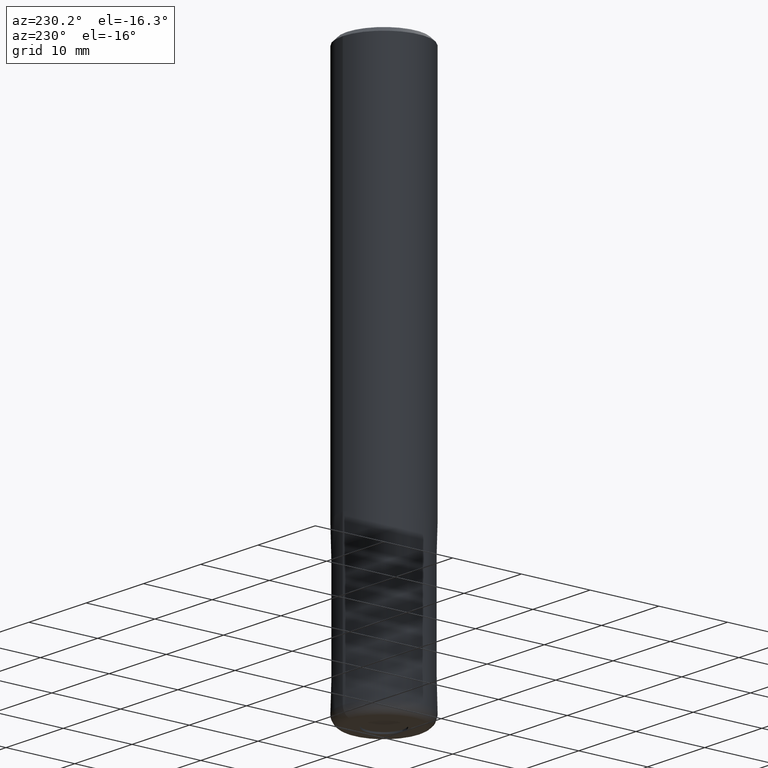
[diagram: clean part render]
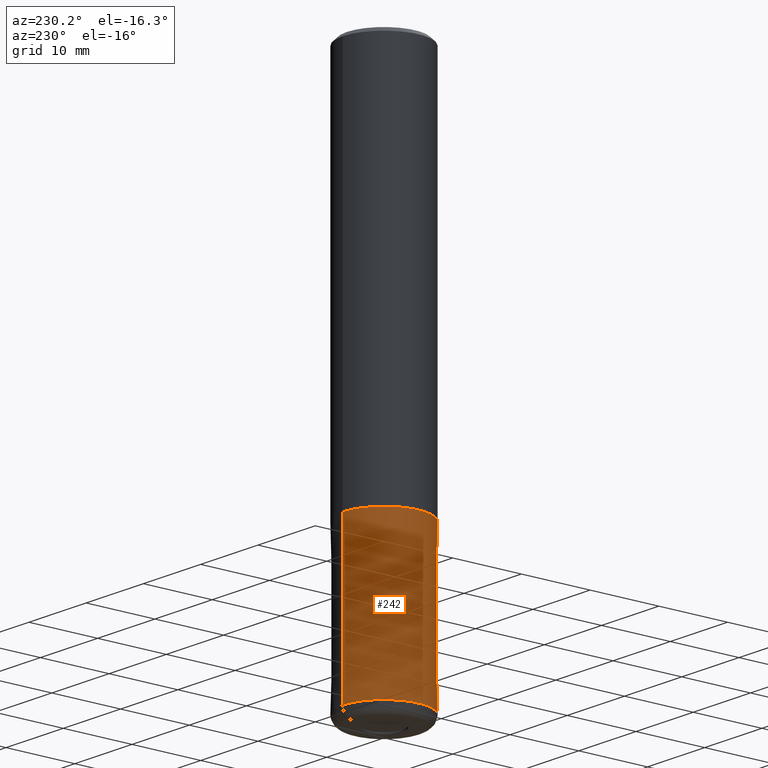
[diagram: same view with one face highlighted and labeled with its STEP entity id]
A machine part, auxiliary view. The second image highlights one B-rep face of the part: STEP entity #242.
In plain terms, the highlighted conical surface has half-angle 0 deg.
Its self-contained STEP definition (entity closure, byte-faithful):
#118=EDGE_CURVE('',#186,#192,#280,.T.);
#150=EDGE_CURVE('',#158,#188,#314,.T.);
#152=EDGE_CURVE('',#192,#158,#316,.T.);
#158=VERTEX_POINT('',#322);
#186=VERTEX_POINT('',#354);
#188=VERTEX_POINT('',#356);
#192=VERTEX_POINT('',#360);
#230=EDGE_CURVE('',#186,#188,#408,.T.);
#242=ADVANCED_FACE('',(#422),#423,.T.);
#280=LINE('',#460,#461);
#314=LINE('',#502,#503);
#316=CIRCLE('',#506,5.9999);
#322=CARTESIAN_POINT('',(0.0,5.9999,-56.0));
#354=CARTESIAN_POINT('',(7.34763812293426E-016,-6.0,-78.5));
#356=CARTESIAN_POINT('',(0.0,6.0,-78.5));
#360=CARTESIAN_POINT('',(7.34751566229888E-016,-5.9999,-56.0));
#408=CIRCLE('',#618,6.0);
#422=FACE_OUTER_BOUND('',#635,.T.);
#423=CONICAL_SURFACE('',#636,5.99995,4.44444444440482E-006);
#460=CARTESIAN_POINT('',(7.34757689261657E-016,-5.99995,-67.25));
#461=VECTOR('',#661,1.0);
#502=CARTESIAN_POINT('',(-7.34757689261657E-016,5.99995,-67.25));
#503=VECTOR('',#700,1.0);
#506=AXIS2_PLACEMENT_3D('',#701,#702,#703);
#618=AXIS2_PLACEMENT_3D('',#827,#828,#829);
#635=EDGE_LOOP('',(#843,#844,#845,#846));
#636=AXIS2_PLACEMENT_3D('',#847,#848,#849);
#661=DIRECTION('',(-5.44269490581079E-022,4.44444444439019E-006,0.999999999990124));
#700=DIRECTION('',(-5.44269490581079E-022,4.44444444439019E-006,-0.999999999990124));
#701=CARTESIAN_POINT('',(0.0,0.0,-56.0));
#702=DIRECTION('',(0.0,0.0,-1.0));
#703=DIRECTION('',(0.0,1.0,0.0));
#827=CARTESIAN_POINT('',(0.0,0.0,-78.5));
#828=DIRECTION('',(0.0,0.0,-1.0));
#829=DIRECTION('',(0.0,1.0,0.0));
#843=ORIENTED_EDGE('',*,*,#150,.T.);
#844=ORIENTED_EDGE('',*,*,#230,.F.);
#845=ORIENTED_EDGE('',*,*,#118,.T.);
#846=ORIENTED_EDGE('',*,*,#152,.T.);
#847=CARTESIAN_POINT('',(0.0,0.0,-67.25));
#848=DIRECTION('',(0.0,-0.0,-1.0));
#849=DIRECTION('',(0.0,1.0,0.0));